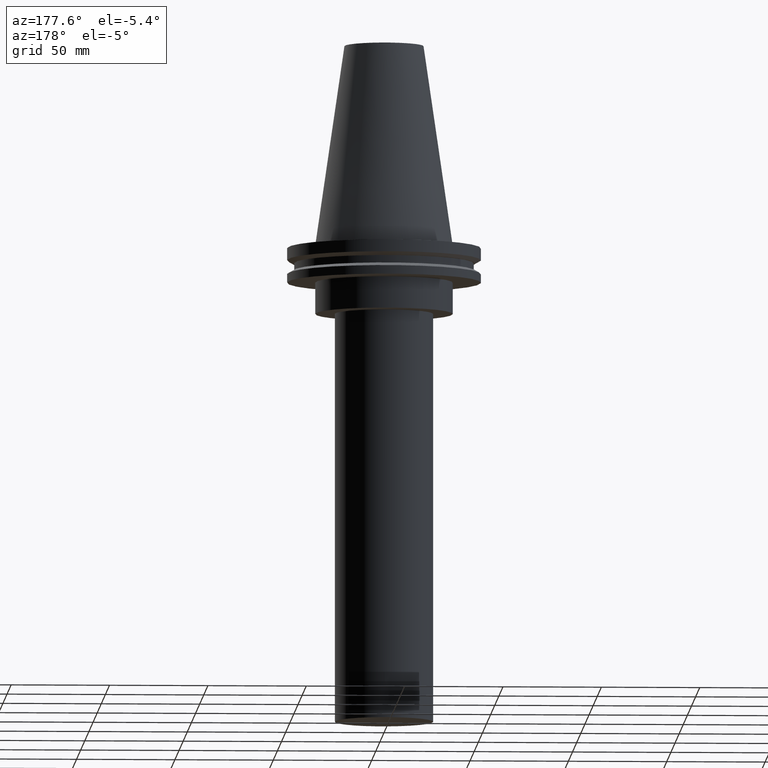
[diagram: clean part render]
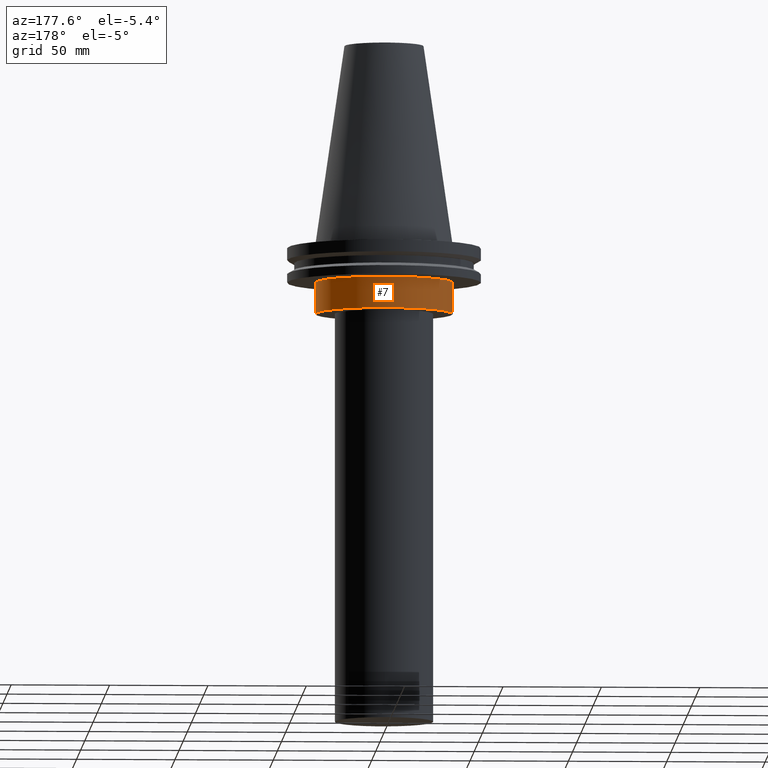
[diagram: same view with one face highlighted and labeled with its STEP entity id]
A machine part, auxiliary view. The second image highlights one B-rep face of the part: STEP entity #7.
In plain terms, the highlighted cylindrical surface (bore or boss wall) has radius 34.925 mm, axis along (-0, -0, 1).
Its self-contained STEP definition (entity closure, byte-faithful):
#6 = FACE_OUTER_BOUND ( 'NONE', #312, .T. ) ;
#7 = ADVANCED_FACE ( 'NONE', ( #6, #198 ), #338, .T. ) ;
#13 = DIRECTION ( 'NONE',  ( 1.000000000000000000, 0.000000000000000000, 0.000000000000000000 ) ) ;
#21 = DIRECTION ( 'NONE',  ( -0.000000000000000000, -0.000000000000000000, 1.000000000000000000 ) ) ;
#38 = ORIENTED_EDGE ( 'NONE', *, *, #372, .T. ) ;
#76 = DIRECTION ( 'NONE',  ( -0.000000000000000000, -0.000000000000000000, 1.000000000000000000 ) ) ;
#79 = CARTESIAN_POINT ( 'NONE',  ( 0.000000000000000000, 0.000000000000000000, -19.04999999999999716 ) ) ;
#89 = ORIENTED_EDGE ( 'NONE', *, *, #190, .F. ) ;
#106 = AXIS2_PLACEMENT_3D ( 'NONE', #79, #76, #13 ) ;
#124 = DIRECTION ( 'NONE',  ( 1.000000000000000000, 0.000000000000000000, 0.000000000000000000 ) ) ;
#134 = AXIS2_PLACEMENT_3D ( 'NONE', #313, #283, #258 ) ;
#137 = CIRCLE ( 'NONE', #282, 34.92499999999999716 ) ;
#144 = CIRCLE ( 'NONE', #106, 34.92499999999999716 ) ;
#190 = EDGE_CURVE ( 'NONE', #209, #209, #144, .T. ) ;
#198 = FACE_OUTER_BOUND ( 'NONE', #220, .T. ) ;
#209 = VERTEX_POINT ( 'NONE', #326 ) ;
#220 = EDGE_LOOP ( 'NONE', ( #38 ) ) ;
#258 = DIRECTION ( 'NONE',  ( 1.000000000000000000, 0.000000000000000000, 0.000000000000000000 ) ) ;
#274 = CARTESIAN_POINT ( 'NONE',  ( 0.000000000000000000, 0.000000000000000000, -35.00000000000000000 ) ) ;
#282 = AXIS2_PLACEMENT_3D ( 'NONE', #274, #21, #124 ) ;
#283 = DIRECTION ( 'NONE',  ( -0.000000000000000000, -0.000000000000000000, 1.000000000000000000 ) ) ;
#308 = VERTEX_POINT ( 'NONE', #339 ) ;
#312 = EDGE_LOOP ( 'NONE', ( #89 ) ) ;
#313 = CARTESIAN_POINT ( 'NONE',  ( 0.000000000000000000, 0.000000000000000000, 101.5999999999999943 ) ) ;
#326 = CARTESIAN_POINT ( 'NONE',  ( 34.92499999999999716, 0.000000000000000000, -19.04999999999999716 ) ) ;
#338 = CYLINDRICAL_SURFACE ( 'NONE', #134, 34.92499999999999716 ) ;
#339 = CARTESIAN_POINT ( 'NONE',  ( 34.92499999999999716, 0.000000000000000000, -35.00000000000000000 ) ) ;
#372 = EDGE_CURVE ( 'NONE', #308, #308, #137, .T. ) ;